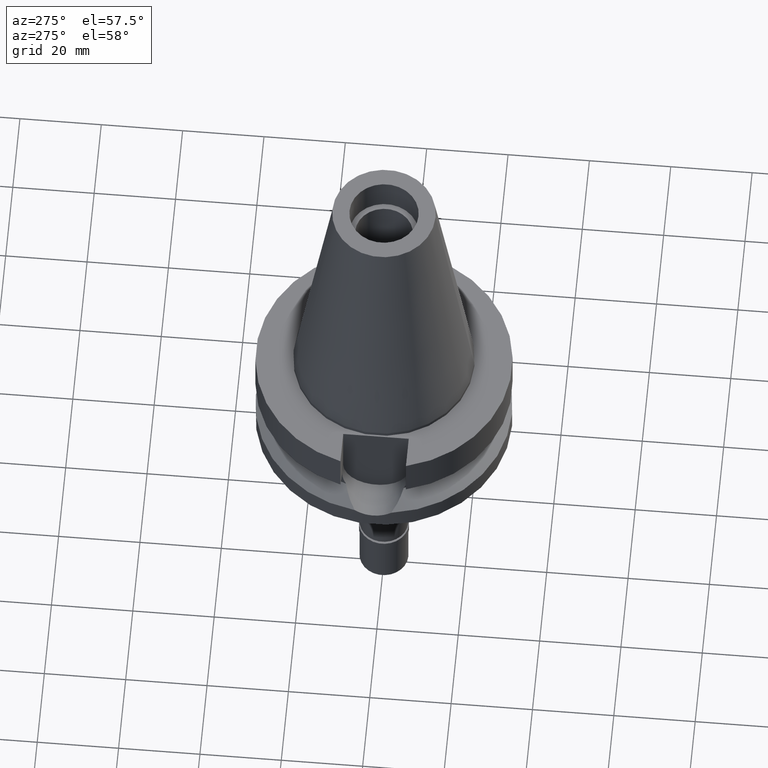
[diagram: clean part render]
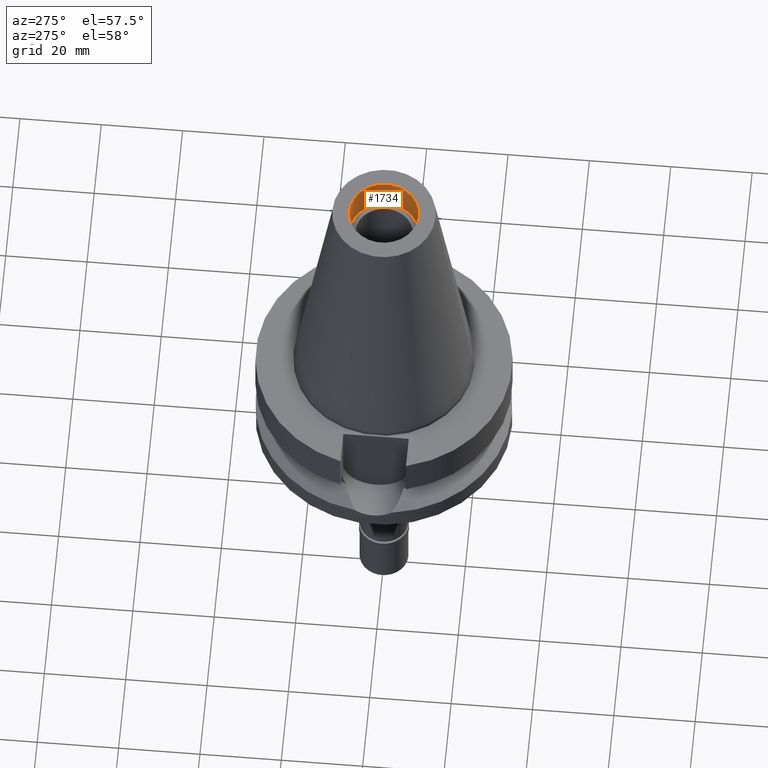
[diagram: same view with one face highlighted and labeled with its STEP entity id]
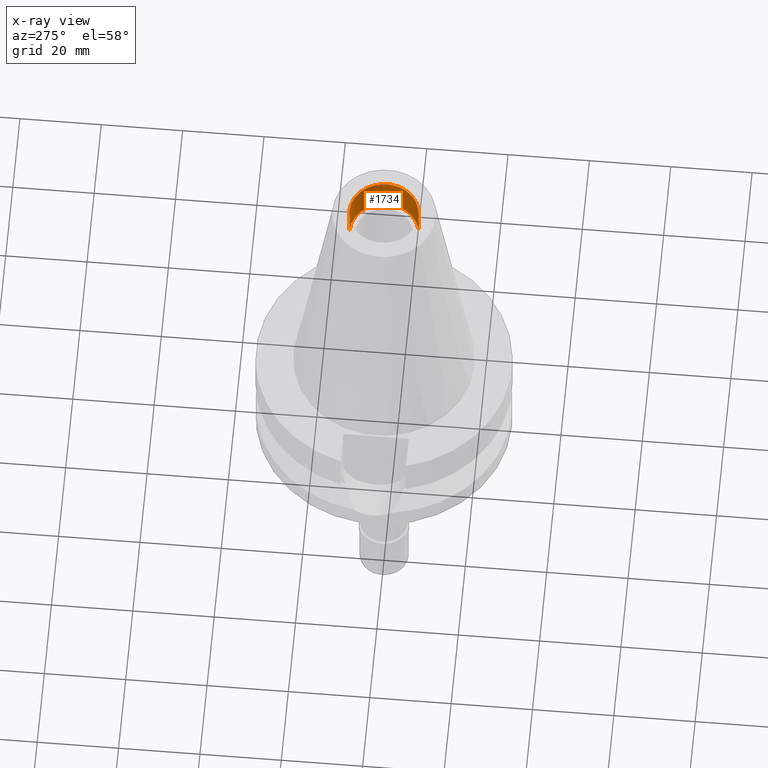
[diagram: x-ray of the same camera — body ghosted, the highlighted face saturated]
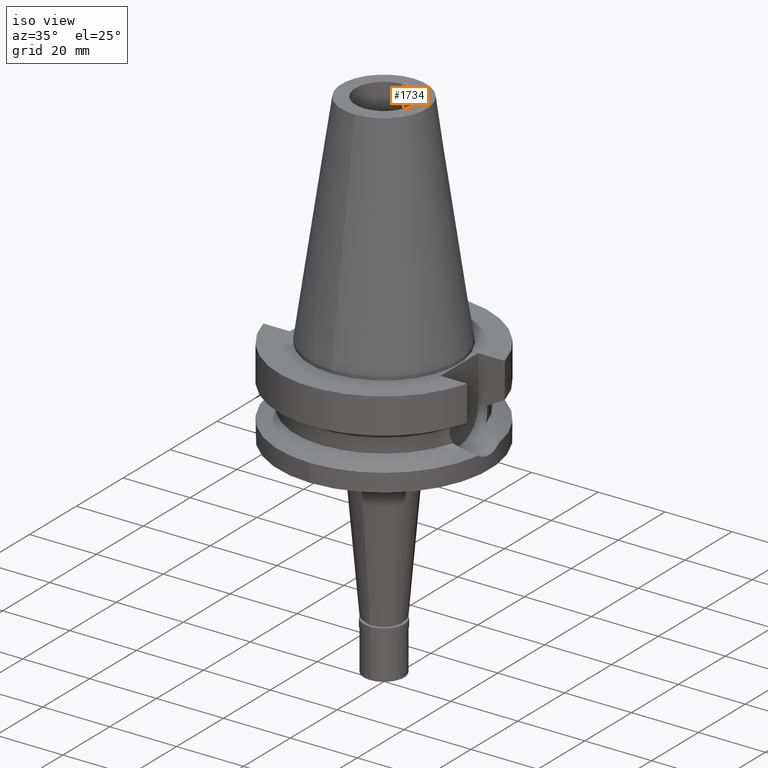
[diagram: same view with one face highlighted and labeled with its STEP entity id]
A machine part, auxiliary view. The second image highlights one B-rep face of the part: STEP entity #1734.
The next image is the same camera in x-ray: the body ghosted, the highlighted face saturated — about 0% of this face is hidden behind the body in this view.
A second angle (iso view) of the same face is appended — the face is thin or edge-on in the first view.
In plain terms, the highlighted cylindrical surface (edge-blend (fillet) strip) has radius 8.5 mm, axis along (0, 0, -1).
Its self-contained STEP definition (entity closure, byte-faithful):
#92 = DIRECTION ( 'NONE',  ( 0.0000000000000000000, 1.000000000000000000, 0.0000000000000000000 ) ) ;
#120 = ORIENTED_EDGE ( 'NONE', *, *, #2036, .T. ) ;
#287 = DIRECTION ( 'NONE',  ( 0.0000000000000000000, 0.0000000000000000000, 1.000000000000000000 ) ) ;
#304 = CARTESIAN_POINT ( 'NONE',  ( 0.0000000000000000000, 8.500000000000000000, 56.39999999999999858 ) ) ;
#307 = CARTESIAN_POINT ( 'NONE',  ( 0.0000000000000000000, -8.500000000000000000, 65.40000000000000568 ) ) ;
#371 = CARTESIAN_POINT ( 'NONE',  ( 0.0000000000000000000, 2.118271568485000005E-14, 56.39999999999999858 ) ) ;
#506 = VECTOR ( 'NONE', #1452, 1000.000000000000000 ) ;
#664 = CARTESIAN_POINT ( 'NONE',  ( 0.0000000000000000000, -8.500000000000000000, 56.39999999999999858 ) ) ;
#714 = AXIS2_PLACEMENT_3D ( 'NONE', #2005, #1311, #2684 ) ;
#841 = DIRECTION ( 'NONE',  ( 0.0000000000000000000, 0.0000000000000000000, -1.000000000000000000 ) ) ;
#907 = CYLINDRICAL_SURFACE ( 'NONE', #714, 8.500000000000000000 ) ;
#946 = VERTEX_POINT ( 'NONE', #307 ) ;
#982 = LINE ( 'NONE', #304, #506 ) ;
#1084 = EDGE_LOOP ( 'NONE', ( #120, #1646, #2465, #2253 ) ) ;
#1119 = FACE_OUTER_BOUND ( 'NONE', #1084, .T. ) ;
#1132 = CIRCLE ( 'NONE', #1514, 8.500000000000000000 ) ;
#1133 = DIRECTION ( 'NONE',  ( 0.0000000000000000000, 0.0000000000000000000, 1.000000000000000000 ) ) ;
#1276 = VERTEX_POINT ( 'NONE', #1375 ) ;
#1311 = DIRECTION ( 'NONE',  ( 0.0000000000000000000, 0.0000000000000000000, -1.000000000000000000 ) ) ;
#1353 = VERTEX_POINT ( 'NONE', #2765 ) ;
#1375 = CARTESIAN_POINT ( 'NONE',  ( 0.0000000000000000000, 8.500000000000000000, 56.39999999999999858 ) ) ;
#1382 = EDGE_CURVE ( 'NONE', #946, #2229, #1750, .T. ) ;
#1386 = EDGE_CURVE ( 'NONE', #1276, #2229, #982, .T. ) ;
#1452 = DIRECTION ( 'NONE',  ( 0.0000000000000000000, 0.0000000000000000000, 1.000000000000000000 ) ) ;
#1514 = AXIS2_PLACEMENT_3D ( 'NONE', #371, #841, #92 ) ;
#1641 = CARTESIAN_POINT ( 'NONE',  ( 0.0000000000000000000, 2.118271568485000005E-14, 65.40000000000000568 ) ) ;
#1646 = ORIENTED_EDGE ( 'NONE', *, *, #1705, .T. ) ;
#1658 = DIRECTION ( 'NONE',  ( 0.0000000000000000000, -1.000000000000000000, 0.0000000000000000000 ) ) ;
#1705 = EDGE_CURVE ( 'NONE', #1353, #946, #2282, .T. ) ;
#1734 = ADVANCED_FACE ( 'NONE', ( #1119 ), #907, .F. ) ;
#1750 = CIRCLE ( 'NONE', #1897, 8.500000000000000000 ) ;
#1853 = VECTOR ( 'NONE', #1133, 1000.000000000000000 ) ;
#1862 = CARTESIAN_POINT ( 'NONE',  ( 0.0000000000000000000, 8.500000000000000000, 65.40000000000000568 ) ) ;
#1897 = AXIS2_PLACEMENT_3D ( 'NONE', #1641, #287, #1658 ) ;
#2005 = CARTESIAN_POINT ( 'NONE',  ( 0.0000000000000000000, 2.118271568485000005E-14, 72.96999999999999886 ) ) ;
#2036 = EDGE_CURVE ( 'NONE', #1276, #1353, #1132, .T. ) ;
#2229 = VERTEX_POINT ( 'NONE', #1862 ) ;
#2253 = ORIENTED_EDGE ( 'NONE', *, *, #1386, .F. ) ;
#2282 = LINE ( 'NONE', #664, #1853 ) ;
#2465 = ORIENTED_EDGE ( 'NONE', *, *, #1382, .T. ) ;
#2684 = DIRECTION ( 'NONE',  ( 0.0000000000000000000, -1.000000000000000000, 0.0000000000000000000 ) ) ;
#2765 = CARTESIAN_POINT ( 'NONE',  ( 0.0000000000000000000, -8.500000000000000000, 56.39999999999999858 ) ) ;